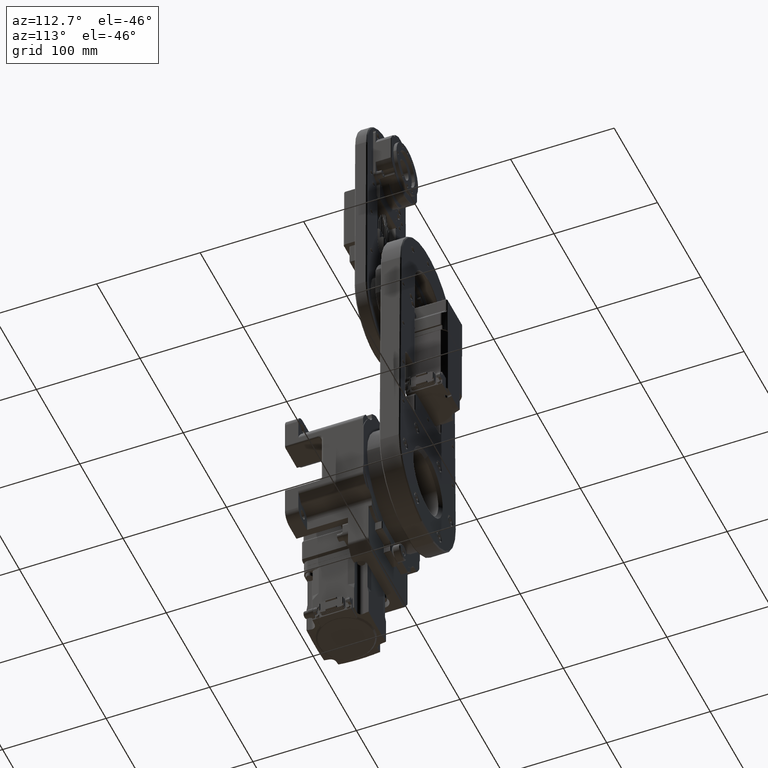
[diagram: clean part render]
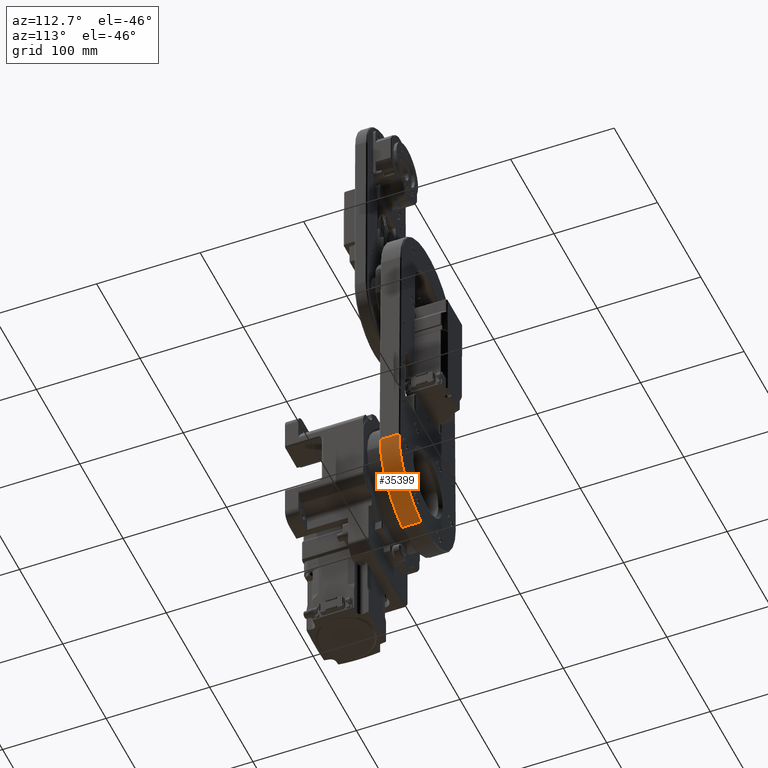
[diagram: same view with one face highlighted and labeled with its STEP entity id]
A machine part, auxiliary view. The second image highlights one B-rep face of the part: STEP entity #35399.
In plain terms, the highlighted cylindrical surface (partial cylindrical patch) has radius 65 mm, axis along (-0, -1, 0).
Its self-contained STEP definition (entity closure, byte-faithful):
#5917 = ORIENTED_EDGE ( 'NONE', *, *, #30044, .T. ) ;
#9407 = CARTESIAN_POINT ( 'NONE',  ( 7.623418891965833428E-12, 92.00000000000032685, 2.246221701298389766E-14 ) ) ;
#10336 = DIRECTION ( 'NONE',  ( 1.428298247106164424E-15, 1.000000000000000000, -1.323339650661262444E-15 ) ) ;
#13383 = VERTEX_POINT ( 'NONE', #43837 ) ;
#14293 = DIRECTION ( 'NONE',  ( -1.428298247106164424E-15, -1.000000000000000000, 1.323339650661262444E-15 ) ) ;
#15593 = LINE ( 'NONE', #29816, #86734 ) ;
#16235 = CIRCLE ( 'NONE', #76793, 65.00000000000002842 ) ;
#22782 = CARTESIAN_POINT ( 'NONE',  ( 7.649128260413743411E-12, 110.0000000000003268, -1.357896698918824358E-15 ) ) ;
#23656 = DIRECTION ( 'NONE',  ( -1.110223024625117221E-16, 1.281026566875180017E-15, 1.000000000000000000 ) ) ;
#25048 = VECTOR ( 'NONE', #45556, 1000.000000000000000 ) ;
#27914 = CARTESIAN_POINT ( 'NONE',  ( 65.00000000000767386, 110.0000000000002416, 9.838655058373594147E-15 ) ) ;
#28235 = CARTESIAN_POINT ( 'NONE',  ( 13.88344337692255159, 110.0000000000002274, -63.50000000000001421 ) ) ;
#29816 = CARTESIAN_POINT ( 'NONE',  ( 65.00000000000767386, 111.0000000000002416, 8.515315407712330717E-15 ) ) ;
#30044 = EDGE_CURVE ( 'NONE', #46630, #42919, #15593, .T. ) ;
#30486 = CARTESIAN_POINT ( 'NONE',  ( 7.650556558660849701E-12, 111.0000000000003411, -2.681236349580088183E-15 ) ) ;
#35399 = ADVANCED_FACE ( 'NONE', ( #37619 ), #66513, .T. ) ;
#37253 = ORIENTED_EDGE ( 'NONE', *, *, #53978, .T. ) ;
#37292 = ORIENTED_EDGE ( 'NONE', *, *, #52566, .T. ) ;
#37619 = FACE_OUTER_BOUND ( 'NONE', #90706, .T. ) ;
#38894 = CARTESIAN_POINT ( 'NONE',  ( 13.88344337692255159, 111.0000000000002274, -63.50000000000001421 ) ) ;
#40305 = LINE ( 'NONE', #38894, #25048 ) ;
#42919 = VERTEX_POINT ( 'NONE', #77626 ) ;
#43837 = CARTESIAN_POINT ( 'NONE',  ( 13.88344337692252495, 92.00000000000022737, -63.49999999999998579 ) ) ;
#45556 = DIRECTION ( 'NONE',  ( 1.428298247106164424E-15, 1.000000000000000000, -1.323339650661262444E-15 ) ) ;
#46630 = VERTEX_POINT ( 'NONE', #27914 ) ;
#52566 = EDGE_CURVE ( 'NONE', #77549, #46630, #61069, .T. ) ;
#53978 = EDGE_CURVE ( 'NONE', #13383, #77549, #40305, .T. ) ;
#58796 = DIRECTION ( 'NONE',  ( -1.110223024625117221E-16, 1.281026566875180017E-15, 1.000000000000000000 ) ) ;
#60099 = DIRECTION ( 'NONE',  ( -1.428298247106164424E-15, -1.000000000000000000, 1.323339650661262444E-15 ) ) ;
#61069 = CIRCLE ( 'NONE', #76193, 65.00000000000002842 ) ;
#66513 = CYLINDRICAL_SURFACE ( 'NONE', #78119, 65.00000000000002842 ) ;
#74094 = DIRECTION ( 'NONE',  ( 1.110223024625117221E-16, -1.281026566875180017E-15, -1.000000000000000000 ) ) ;
#76193 = AXIS2_PLACEMENT_3D ( 'NONE', #22782, #14293, #58796 ) ;
#76793 = AXIS2_PLACEMENT_3D ( 'NONE', #9407, #10336, #23656 ) ;
#77549 = VERTEX_POINT ( 'NONE', #28235 ) ;
#77626 = CARTESIAN_POINT ( 'NONE',  ( 65.00000000000764544, 92.00000000000022737, 3.365876877027631380E-14 ) ) ;
#78119 = AXIS2_PLACEMENT_3D ( 'NONE', #30486, #88263, #74094 ) ;
#79305 = ORIENTED_EDGE ( 'NONE', *, *, #87115, .T. ) ;
#86734 = VECTOR ( 'NONE', #60099, 1000.000000000000000 ) ;
#87115 = EDGE_CURVE ( 'NONE', #42919, #13383, #16235, .T. ) ;
#88263 = DIRECTION ( 'NONE',  ( -1.428298247106164424E-15, -1.000000000000000000, 1.323339650661262444E-15 ) ) ;
#90706 = EDGE_LOOP ( 'NONE', ( #5917, #79305, #37253, #37292 ) ) ;